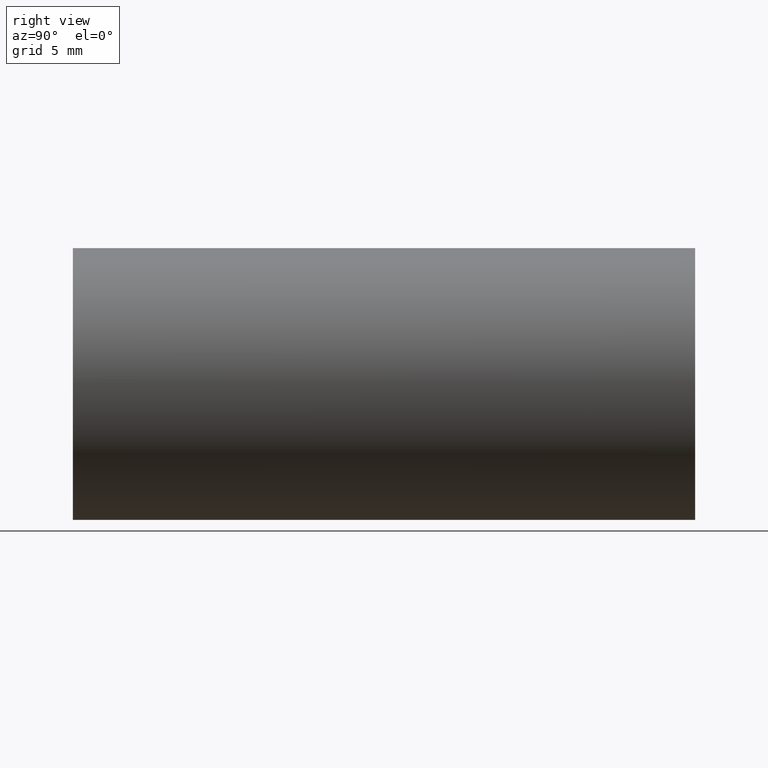
[diagram: clean part render]
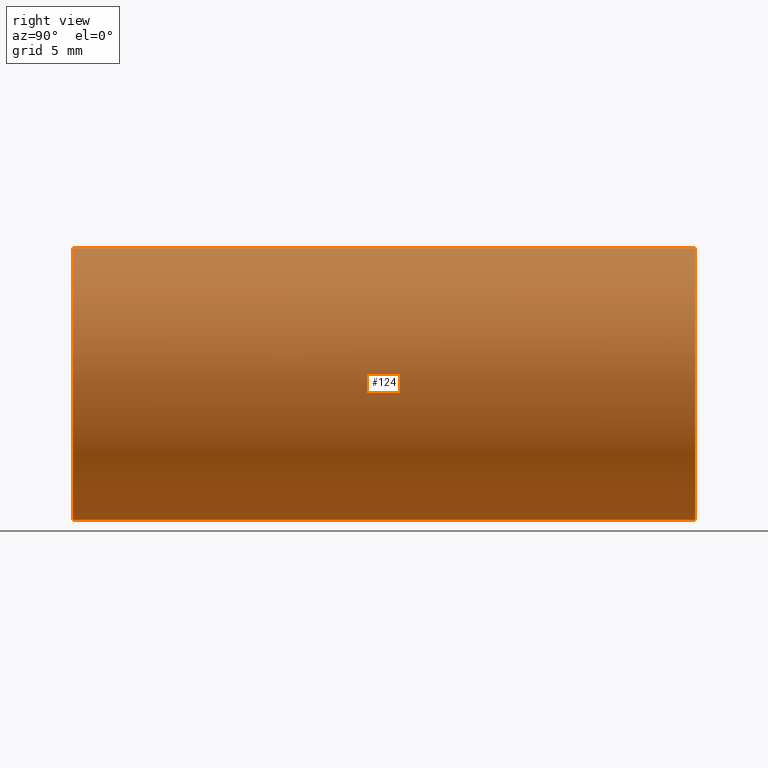
[diagram: same view with one face highlighted and labeled with its STEP entity id]
A machine part, right view. The second image highlights one B-rep face of the part: STEP entity #124.
In plain terms, the highlighted cylindrical surface (partial cylindrical patch) has radius 9.525 mm, axis along (-0, 1, -0).
Its self-contained STEP definition (entity closure, byte-faithful):
#34 = CARTESIAN_POINT ( 'NONE',  ( 0.0000000000000000000, -2.775557561562891400E-014, 9.525000000000019900 ) ) ;
#39 = VERTEX_POINT ( 'NONE', #192 ) ;
#67 = CARTESIAN_POINT ( 'NONE',  ( 0.0000000000000000000, 43.59999999999998700, 0.0000000000000000000 ) ) ;
#81 = EDGE_CURVE ( 'NONE', #426, #531, #489, .T. ) ;
#94 = DIRECTION ( 'NONE',  ( -0.0000000000000000000, 1.000000000000000000, -0.0000000000000000000 ) ) ;
#115 = VECTOR ( 'NONE', #94, 1000.000000000000000 ) ;
#118 = ORIENTED_EDGE ( 'NONE', *, *, #475, .F. ) ;
#120 = DIRECTION ( 'NONE',  ( 0.0000000000000000000, 0.0000000000000000000, 1.000000000000000000 ) ) ;
#124 = ADVANCED_FACE ( 'NONE', ( #592 ), #135, .T. ) ;
#131 = AXIS2_PLACEMENT_3D ( 'NONE', #152, #307, #145 ) ;
#135 = CYLINDRICAL_SURFACE ( 'NONE', #163, 9.525000000000019900 ) ;
#145 = DIRECTION ( 'NONE',  ( 0.0000000000000000000, 0.0000000000000000000, 1.000000000000000000 ) ) ;
#152 = CARTESIAN_POINT ( 'NONE',  ( 0.0000000000000000000, -2.775557561562891400E-014, 0.0000000000000000000 ) ) ;
#158 = CIRCLE ( 'NONE', #537, 9.525000000000019900 ) ;
#163 = AXIS2_PLACEMENT_3D ( 'NONE', #499, #582, #541 ) ;
#174 = EDGE_LOOP ( 'NONE', ( #342, #286, #118, #563 ) ) ;
#179 = EDGE_CURVE ( 'NONE', #561, #39, #376, .T. ) ;
#190 = CARTESIAN_POINT ( 'NONE',  ( 1.166476076187856400E-015, 161.3761669434274500, -9.525000000000019900 ) ) ;
#192 = CARTESIAN_POINT ( 'NONE',  ( 0.0000000000000000000, 43.59999999999998700, 9.525000000000019900 ) ) ;
#199 = CARTESIAN_POINT ( 'NONE',  ( 0.0000000000000000000, 161.3761669434274500, 9.525000000000019900 ) ) ;
#209 = EDGE_CURVE ( 'NONE', #561, #426, #554, .T. ) ;
#278 = CARTESIAN_POINT ( 'NONE',  ( 1.166476076187856400E-015, 43.59999999999998700, -9.525000000000019900 ) ) ;
#286 = ORIENTED_EDGE ( 'NONE', *, *, #81, .T. ) ;
#299 = DIRECTION ( 'NONE',  ( -0.0000000000000000000, 1.000000000000000000, -0.0000000000000000000 ) ) ;
#307 = DIRECTION ( 'NONE',  ( -0.0000000000000000000, 1.000000000000000000, -0.0000000000000000000 ) ) ;
#315 = VECTOR ( 'NONE', #299, 1000.000000000000000 ) ;
#342 = ORIENTED_EDGE ( 'NONE', *, *, #209, .T. ) ;
#376 = LINE ( 'NONE', #199, #115 ) ;
#426 = VERTEX_POINT ( 'NONE', #470 ) ;
#470 = CARTESIAN_POINT ( 'NONE',  ( 1.166476076187856400E-015, -2.775557561562891400E-014, -9.525000000000019900 ) ) ;
#475 = EDGE_CURVE ( 'NONE', #39, #531, #158, .T. ) ;
#489 = LINE ( 'NONE', #190, #315 ) ;
#499 = CARTESIAN_POINT ( 'NONE',  ( 0.0000000000000000000, 161.3761669434274500, 0.0000000000000000000 ) ) ;
#531 = VERTEX_POINT ( 'NONE', #278 ) ;
#537 = AXIS2_PLACEMENT_3D ( 'NONE', #67, #611, #120 ) ;
#541 = DIRECTION ( 'NONE',  ( 0.0000000000000000000, 0.0000000000000000000, 1.000000000000000000 ) ) ;
#554 = CIRCLE ( 'NONE', #131, 9.525000000000019900 ) ;
#561 = VERTEX_POINT ( 'NONE', #34 ) ;
#563 = ORIENTED_EDGE ( 'NONE', *, *, #179, .F. ) ;
#582 = DIRECTION ( 'NONE',  ( -0.0000000000000000000, 1.000000000000000000, -0.0000000000000000000 ) ) ;
#592 = FACE_OUTER_BOUND ( 'NONE', #174, .T. ) ;
#611 = DIRECTION ( 'NONE',  ( -0.0000000000000000000, 1.000000000000000000, -0.0000000000000000000 ) ) ;